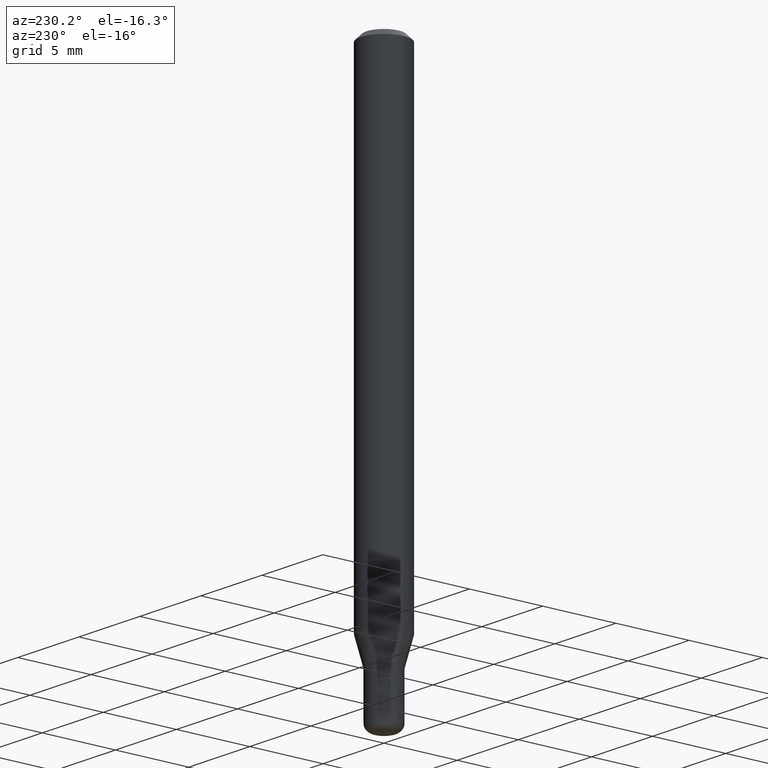
[diagram: clean part render]
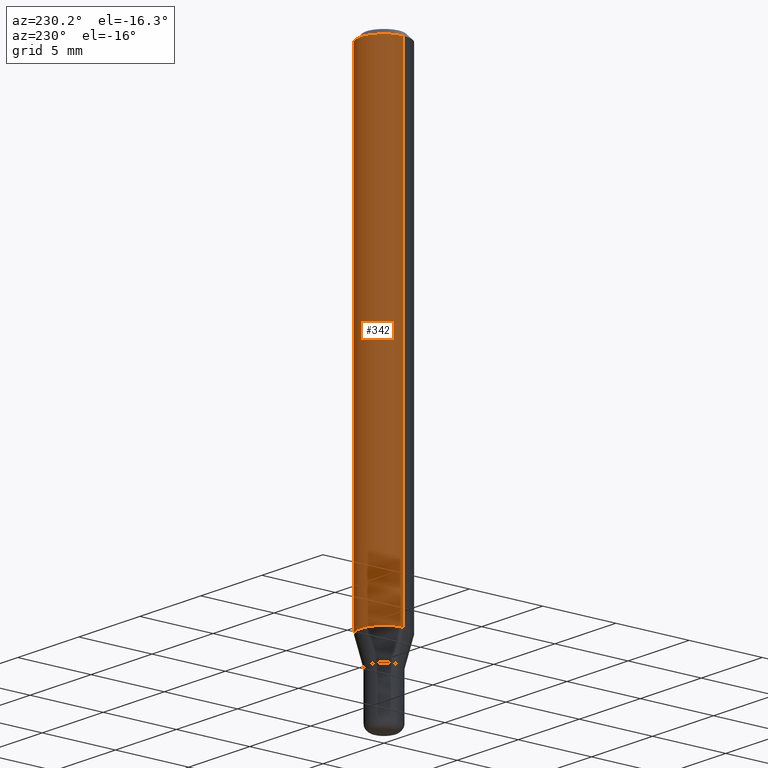
[diagram: same view with one face highlighted and labeled with its STEP entity id]
A machine part, auxiliary view. The second image highlights one B-rep face of the part: STEP entity #342.
In plain terms, the highlighted cylindrical surface (edge-blend (fillet) strip) has radius 1.5875 mm, axis along (-0, 0, 1).
Its self-contained STEP definition (entity closure, byte-faithful):
#31 = CIRCLE ( 'NONE', #79, 0.06250000000000000000 ) ;
#45 = EDGE_CURVE ( 'NONE', #470, #326, #349, .T. ) ;
#52 = CARTESIAN_POINT ( 'NONE',  ( 0.06250000000000000000, -4.364351673553916694E-16, 3.047610484872459871E-30 ) ) ;
#64 = CARTESIAN_POINT ( 'NONE',  ( -0.06250000000000000000, -4.050700658649478029E-15, -1.287358983848622795 ) ) ;
#65 = VECTOR ( 'NONE', #230, 39.37007874015748143 ) ;
#75 = EDGE_LOOP ( 'NONE', ( #207, #484, #488, #324 ) ) ;
#79 = AXIS2_PLACEMENT_3D ( 'NONE', #305, #140, #245 ) ;
#81 = CARTESIAN_POINT ( 'NONE',  ( 0.06250000000000000000, -4.931225035854932314E-15, -1.287358983848622795 ) ) ;
#95 = CARTESIAN_POINT ( 'NONE',  ( 3.148196237364002379E-29, -4.494789868499541434E-15, -1.287358983848622795 ) ) ;
#108 = EDGE_CURVE ( 'NONE', #326, #252, #31, .T. ) ;
#119 = VECTOR ( 'NONE', #492, 39.37007874015748143 ) ;
#140 = DIRECTION ( 'NONE',  ( -2.445468806185136597E-29, 3.491481338843145583E-15, 1.000000000000000000 ) ) ;
#145 = CARTESIAN_POINT ( 'NONE',  ( -0.06250000000000000000, 4.440892098500626162E-16, -3.074334431409316114E-30 ) ) ;
#173 = EDGE_CURVE ( 'NONE', #470, #334, #309, .T. ) ;
#195 = EDGE_CURVE ( 'NONE', #334, #252, #260, .T. ) ;
#207 = ORIENTED_EDGE ( 'NONE', *, *, #173, .T. ) ;
#230 = DIRECTION ( 'NONE',  ( -2.445468806185136877E-29, 3.491481338843145188E-15, 1.000000000000000000 ) ) ;
#245 = DIRECTION ( 'NONE',  ( 1.000000000000000000, -6.982962677686266711E-15, 0.000000000000000000 ) ) ;
#252 = VERTEX_POINT ( 'NONE', #510 ) ;
#260 = LINE ( 'NONE', #145, #65 ) ;
#271 = DIRECTION ( 'NONE',  ( 1.000000000000000000, -6.982962677686262766E-15, 0.000000000000000000 ) ) ;
#274 = CARTESIAN_POINT ( 'NONE',  ( 0.000000000000000000, 0.000000000000000000, 0.000000000000000000 ) ) ;
#305 = CARTESIAN_POINT ( 'NONE',  ( 3.668203209277632395E-31, -5.237222008264614861E-17, -0.01499999999999970281 ) ) ;
#309 = CIRCLE ( 'NONE', #464, 0.06250000000000000000 ) ;
#316 = FACE_OUTER_BOUND ( 'NONE', #75, .T. ) ;
#324 = ORIENTED_EDGE ( 'NONE', *, *, #45, .F. ) ;
#326 = VERTEX_POINT ( 'NONE', #509 ) ;
#334 = VERTEX_POINT ( 'NONE', #64 ) ;
#342 = ADVANCED_FACE ( 'NONE', ( #316 ), #474, .T. ) ;
#349 = LINE ( 'NONE', #52, #119 ) ;
#389 = DIRECTION ( 'NONE',  ( -2.445468806185136597E-29, 3.491481338843145583E-15, 1.000000000000000000 ) ) ;
#443 = DIRECTION ( 'NONE',  ( -2.445468806185136597E-29, 3.491481338843145583E-15, 1.000000000000000000 ) ) ;
#464 = AXIS2_PLACEMENT_3D ( 'NONE', #95, #389, #271 ) ;
#470 = VERTEX_POINT ( 'NONE', #81 ) ;
#471 = DIRECTION ( 'NONE',  ( 1.000000000000000000, -6.982962677686266711E-15, 4.876176775795935793E-29 ) ) ;
#474 = CYLINDRICAL_SURFACE ( 'NONE', #482, 0.06250000000000000000 ) ;
#482 = AXIS2_PLACEMENT_3D ( 'NONE', #274, #443, #471 ) ;
#484 = ORIENTED_EDGE ( 'NONE', *, *, #195, .T. ) ;
#488 = ORIENTED_EDGE ( 'NONE', *, *, #108, .F. ) ;
#492 = DIRECTION ( 'NONE',  ( -2.445468806185136877E-29, 3.491481338843145188E-15, 1.000000000000000000 ) ) ;
#509 = CARTESIAN_POINT ( 'NONE',  ( 0.06250000000000000000, -4.888073874380378612E-16, -0.01499999999999970281 ) ) ;
#510 = CARTESIAN_POINT ( 'NONE',  ( -0.06250000000000000000, -1.829491834441030654E-15, -0.01499999999999970281 ) ) ;